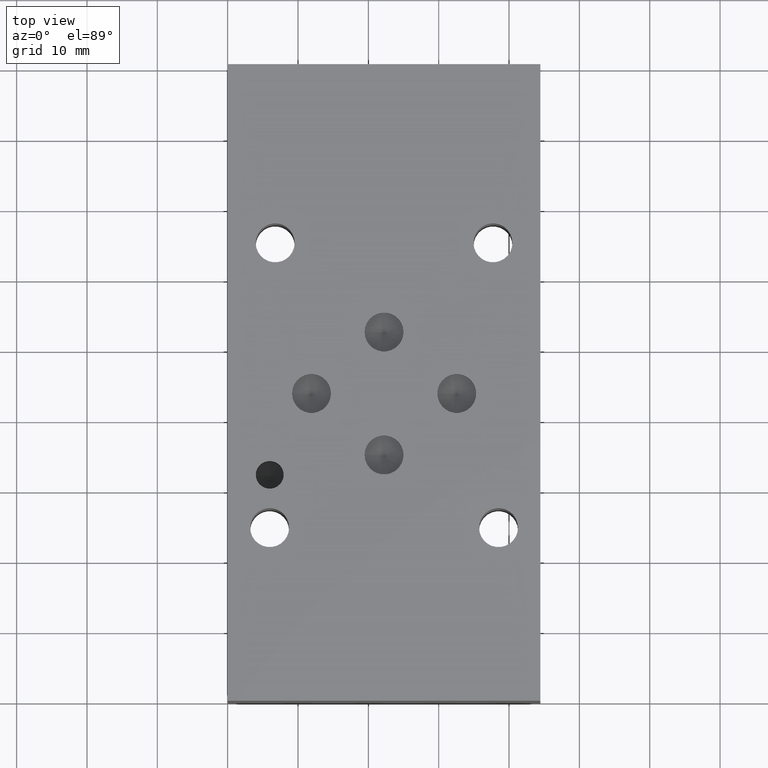
[diagram: clean part render]
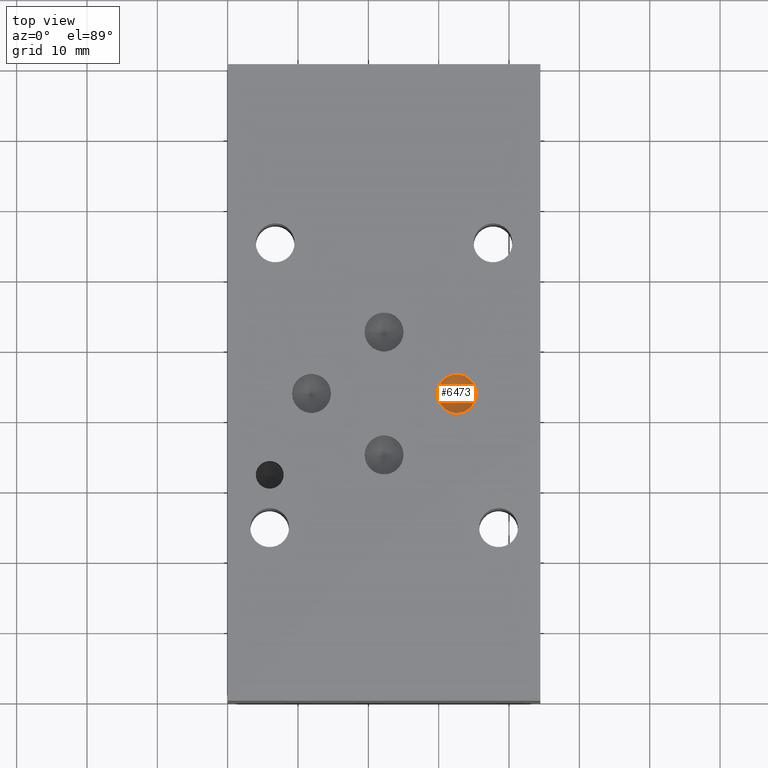
[diagram: same view with one face highlighted and labeled with its STEP entity id]
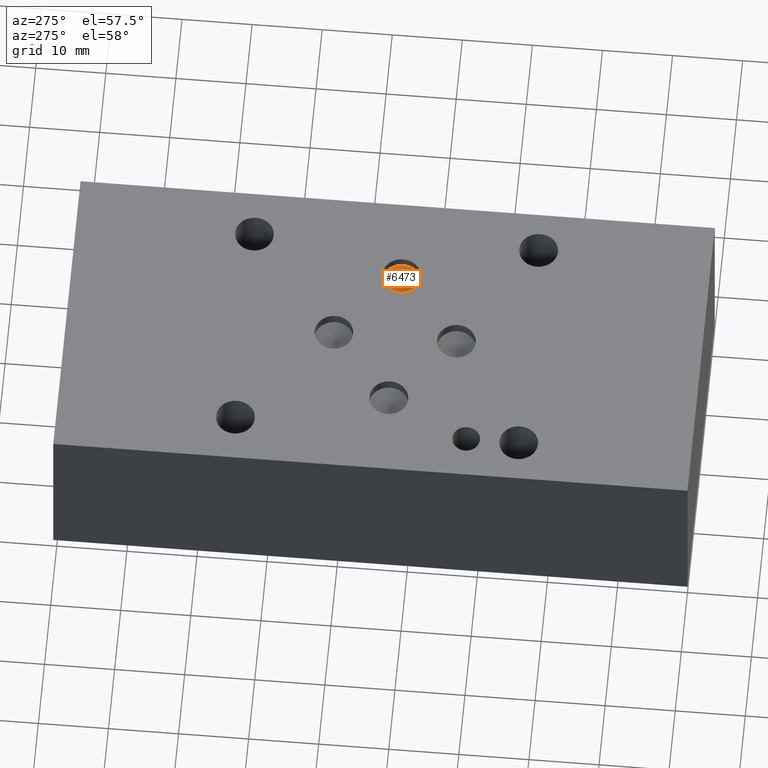
[diagram: same view with one face highlighted and labeled with its STEP entity id]
A machine part, top view. The second image highlights one B-rep face of the part: STEP entity #6473.
A second angle (auxiliary view) of the same face is appended — the face is thin or edge-on in the first view.
In plain terms, the highlighted conical surface has half-angle 60 deg.
Its self-contained STEP definition (entity closure, byte-faithful):
#25=CONICAL_SURFACE('',#6783,1.3843,1.0471975511966);
#70=CIRCLE('',#6784,2.7686);
#678=FACE_OUTER_BOUND('',#1045,.T.);
#1045=EDGE_LOOP('',(#5748,#5749,#5750));
#1724=LINE('',#10939,#2394);
#2394=VECTOR('',#8029,1.3843);
#3146=VERTEX_POINT('',#10936);
#3147=VERTEX_POINT('',#10938);
#4020=EDGE_CURVE('',#3146,#3146,#70,.T.);
#4021=EDGE_CURVE('',#3146,#3147,#1724,.T.);
#5748=ORIENTED_EDGE('',*,*,#4020,.T.);
#5749=ORIENTED_EDGE('',*,*,#4021,.T.);
#5750=ORIENTED_EDGE('',*,*,#4021,.F.);
#6473=ADVANCED_FACE('',(#678),#25,.F.);
#6783=AXIS2_PLACEMENT_3D('',#10935,#8025,#8026);
#6784=AXIS2_PLACEMENT_3D('',#10937,#8027,#8028);
#8025=DIRECTION('center_axis',(0.,0.,1.));
#8026=DIRECTION('ref_axis',(1.,0.,0.));
#8027=DIRECTION('center_axis',(0.,0.,1.));
#8028=DIRECTION('ref_axis',(1.,0.,0.));
#8029=DIRECTION('',(0.866025403784439,1.06057523872491E-16,-0.5));
#10935=CARTESIAN_POINT('Origin',(32.5628,43.6626,23.0023240223608));
#10936=CARTESIAN_POINT('',(29.7942,43.6626,23.80155));
#10937=CARTESIAN_POINT('Origin',(32.5628,43.6626,23.80155));
#10938=CARTESIAN_POINT('',(32.5628,43.6626,22.2030980447216));
#10939=CARTESIAN_POINT('',(31.1785,43.6626,23.0023240223608));